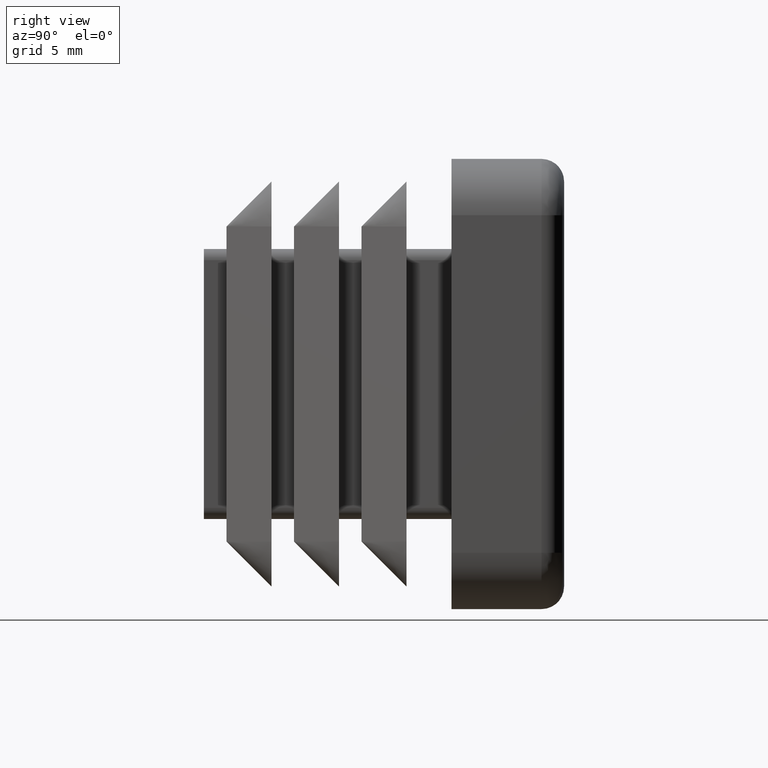
[diagram: clean part render]
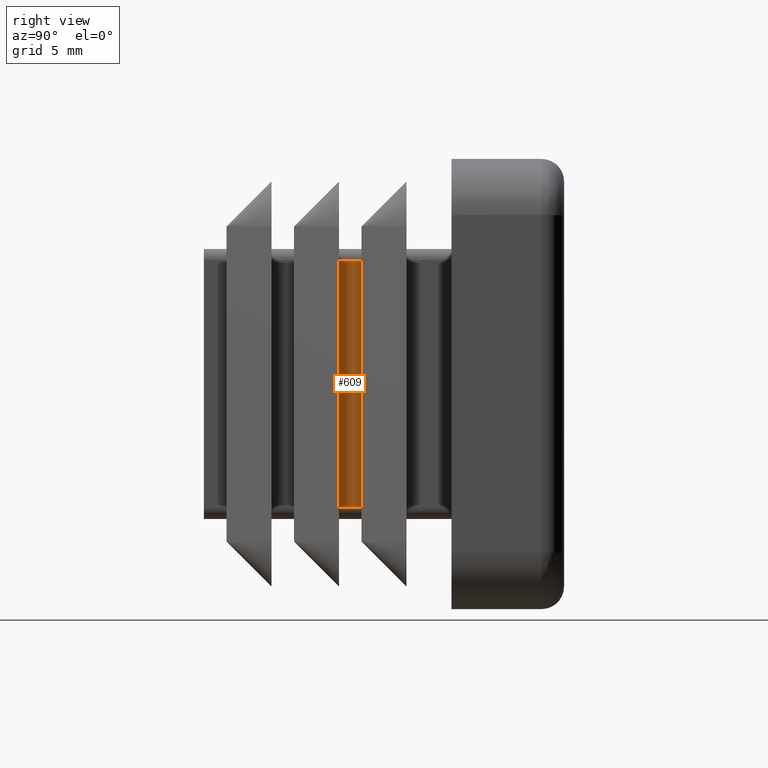
[diagram: same view with one face highlighted and labeled with its STEP entity id]
A machine part, right view. The second image highlights one B-rep face of the part: STEP entity #609.
In plain terms, the highlighted planar face has unit normal (-1, 0, 0).
Its self-contained STEP definition (entity closure, byte-faithful):
#552=CARTESIAN_POINT('',(6.000000000000004,-5.0,5.499999999999996));
#553=VERTEX_POINT('',#552);
#561=CARTESIAN_POINT('',(6.000000000000008,-4.0,5.499999999999996));
#562=VERTEX_POINT('',#561);
#563=CARTESIAN_POINT('',(6.000000000000008,-5.0,5.499999999999996));
#564=DIRECTION('',(0.0,1.0,0.0));
#565=VECTOR('',#564,1.0);
#566=LINE('',#563,#565);
#567=EDGE_CURVE('',#553,#562,#566,.T.);
#579=CARTESIAN_POINT('',(6.000000000000004,-5.050000000000000,-6.049999999999996));
#580=DIRECTION('',(-1.0,0.0,0.0));
#581=DIRECTION('',(0.0,0.0,1.0));
#582=AXIS2_PLACEMENT_3D('',#579,#580,#581);
#583=PLANE('',#582);
#584=CARTESIAN_POINT('',(6.000000000000008,-5.0,-5.499999999999996));
#585=VERTEX_POINT('',#584);
#586=CARTESIAN_POINT('',(6.000000000000004,-5.0,-5.499999999999996));
#587=DIRECTION('',(0.0,0.0,1.0));
#588=VECTOR('',#587,10.999999999999993);
#589=LINE('',#586,#588);
#590=EDGE_CURVE('',#585,#553,#589,.T.);
#591=ORIENTED_EDGE('',*,*,#590,.F.);
#592=CARTESIAN_POINT('',(6.000000000000004,-4.0,-5.499999999999996));
#593=VERTEX_POINT('',#592);
#594=CARTESIAN_POINT('',(6.000000000000004,-5.0,-5.499999999999996));
#595=DIRECTION('',(0.0,1.0,0.0));
#596=VECTOR('',#595,1.0);
#597=LINE('',#594,#596);
#598=EDGE_CURVE('',#585,#593,#597,.T.);
#599=ORIENTED_EDGE('',*,*,#598,.T.);
#600=CARTESIAN_POINT('',(6.000000000000004,-4.0,5.499999999999996));
#601=DIRECTION('',(0.0,0.0,-1.0));
#602=VECTOR('',#601,10.999999999999993);
#603=LINE('',#600,#602);
#604=EDGE_CURVE('',#562,#593,#603,.T.);
#605=ORIENTED_EDGE('',*,*,#604,.F.);
#606=ORIENTED_EDGE('',*,*,#567,.F.);
#607=EDGE_LOOP('',(#591,#599,#605,#606));
#608=FACE_OUTER_BOUND('',#607,.T.);
#609=ADVANCED_FACE('',(#608),#583,.F.);